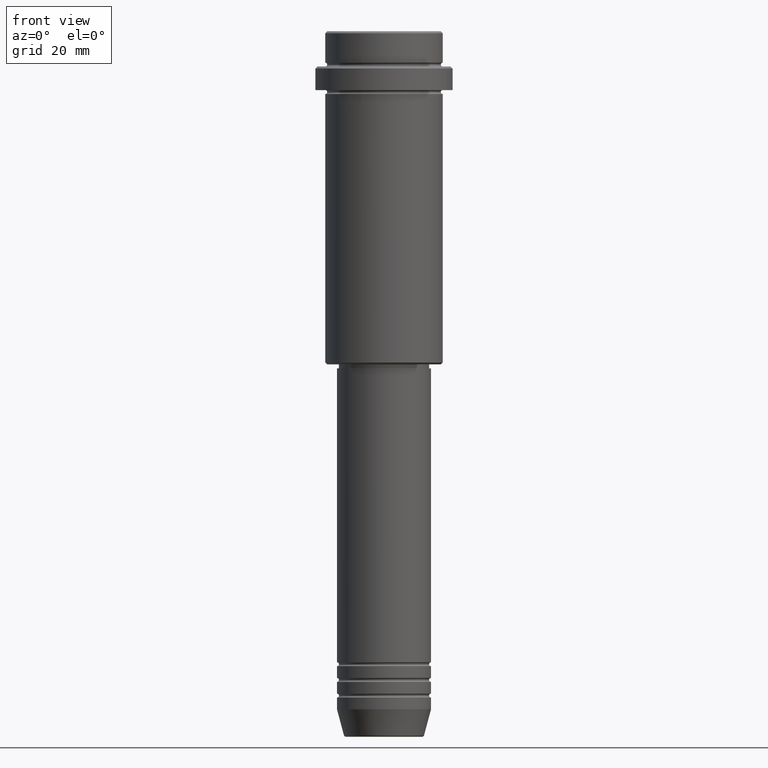
[diagram: clean part render]
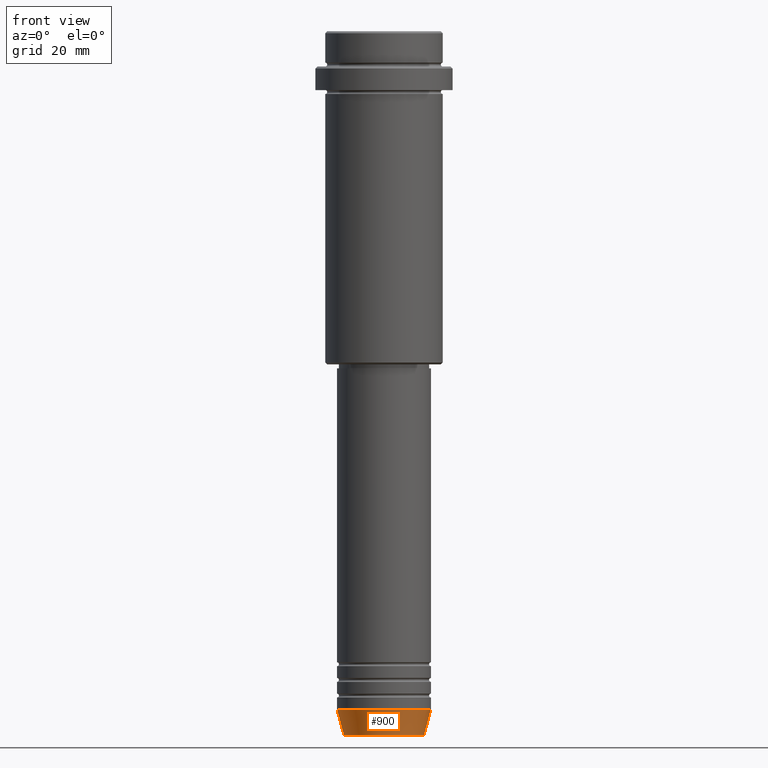
[diagram: same view with one face highlighted and labeled with its STEP entity id]
A machine part, front view. The second image highlights one B-rep face of the part: STEP entity #900.
In plain terms, the highlighted conical surface has half-angle 15 deg.
Its self-contained STEP definition (entity closure, byte-faithful):
#8 = DIRECTION ( 'NONE',  ( 1.000000000000000000, 0.000000000000000000, 0.000000000000000000 ) ) ;
#15 = ORIENTED_EDGE ( 'NONE', *, *, #52, .F. ) ;
#16 = DIRECTION ( 'NONE',  ( 1.000000000000000000, 0.000000000000000000, 0.000000000000000000 ) ) ;
#52 = EDGE_CURVE ( 'NONE', #1407, #366, #269, .T. ) ;
#72 = CARTESIAN_POINT ( 'NONE',  ( -12.00000000000000000, 1.469576158976823947E-15, -173.0000000000000000 ) ) ;
#150 = CARTESIAN_POINT ( 'NONE',  ( 0.000000000000000000, 0.000000000000000000, -173.0000000000000000 ) ) ;
#165 = DIRECTION ( 'NONE',  ( 1.000000000000000000, 0.000000000000000000, 0.000000000000000000 ) ) ;
#193 = AXIS2_PLACEMENT_3D ( 'NONE', #972, #1303, #8 ) ;
#212 = CIRCLE ( 'NONE', #193, 12.00000000000000000 ) ;
#226 = EDGE_CURVE ( 'NONE', #366, #1248, #212, .T. ) ;
#244 = EDGE_CURVE ( 'NONE', #1396, #1248, #1104, .T. ) ;
#252 = AXIS2_PLACEMENT_3D ( 'NONE', #150, #476, #165 ) ;
#261 = ORIENTED_EDGE ( 'NONE', *, *, #226, .F. ) ;
#269 = LINE ( 'NONE', #72, #1088 ) ;
#366 = VERTEX_POINT ( 'NONE', #1346 ) ;
#427 = DIRECTION ( 'NONE',  ( -0.2588190451025213501, 3.169619151431772337E-17, 0.9659258262890680902 ) ) ;
#476 = DIRECTION ( 'NONE',  ( -0.000000000000000000, -0.000000000000000000, 1.000000000000000000 ) ) ;
#511 = CIRCLE ( 'NONE', #1028, 10.22365507213719127 ) ;
#527 = CARTESIAN_POINT ( 'NONE',  ( 10.22365507213719127, 0.000000000000000000, -179.6294095225512422 ) ) ;
#564 = CARTESIAN_POINT ( 'NONE',  ( 0.000000000000000000, 0.000000000000000000, -179.6294095225512422 ) ) ;
#681 = EDGE_LOOP ( 'NONE', ( #15, #1102, #855, #261 ) ) ;
#685 = DIRECTION ( 'NONE',  ( 0.2588190451025213501, 0.000000000000000000, 0.9659258262890680902 ) ) ;
#704 = CARTESIAN_POINT ( 'NONE',  ( 12.00000000000000000, 0.000000000000000000, -173.0000000000000000 ) ) ;
#721 = CONICAL_SURFACE ( 'NONE', #252, 12.00000000000000000, 0.2617993877991500740 ) ;
#855 = ORIENTED_EDGE ( 'NONE', *, *, #244, .T. ) ;
#900 = ADVANCED_FACE ( 'NONE', ( #907 ), #721, .T. ) ;
#907 = FACE_OUTER_BOUND ( 'NONE', #681, .T. ) ;
#958 = CARTESIAN_POINT ( 'NONE',  ( -10.22365507213719127, 1.360806402472382744E-15, -179.6294095225512422 ) ) ;
#972 = CARTESIAN_POINT ( 'NONE',  ( 0.000000000000000000, 0.000000000000000000, -173.0000000000000000 ) ) ;
#1003 = VECTOR ( 'NONE', #685, 1000.000000000000000 ) ;
#1028 = AXIS2_PLACEMENT_3D ( 'NONE', #564, #1311, #16 ) ;
#1086 = CARTESIAN_POINT ( 'NONE',  ( 12.00000000000000000, 0.000000000000000000, -173.0000000000000000 ) ) ;
#1088 = VECTOR ( 'NONE', #427, 1000.000000000000000 ) ;
#1102 = ORIENTED_EDGE ( 'NONE', *, *, #1145, .T. ) ;
#1104 = LINE ( 'NONE', #1086, #1003 ) ;
#1145 = EDGE_CURVE ( 'NONE', #1407, #1396, #511, .T. ) ;
#1248 = VERTEX_POINT ( 'NONE', #704 ) ;
#1303 = DIRECTION ( 'NONE',  ( -0.000000000000000000, -0.000000000000000000, 1.000000000000000000 ) ) ;
#1311 = DIRECTION ( 'NONE',  ( -0.000000000000000000, -0.000000000000000000, 1.000000000000000000 ) ) ;
#1346 = CARTESIAN_POINT ( 'NONE',  ( -12.00000000000000000, 1.469576158976823947E-15, -173.0000000000000000 ) ) ;
#1396 = VERTEX_POINT ( 'NONE', #527 ) ;
#1407 = VERTEX_POINT ( 'NONE', #958 ) ;